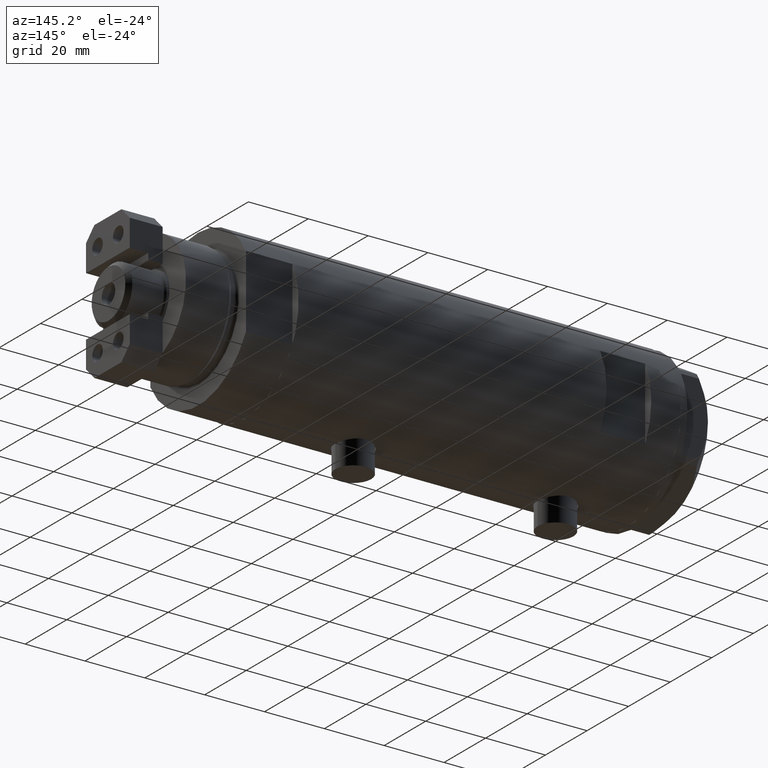
[diagram: clean part render]
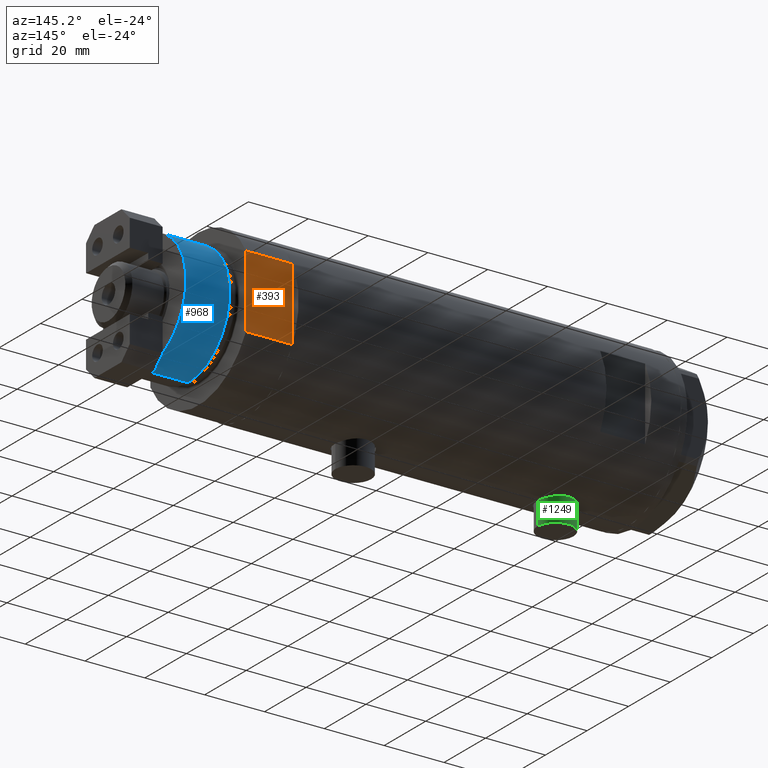
[diagram: same view with three faces highlighted in distinct colors, each labeled with its STEP entity id]
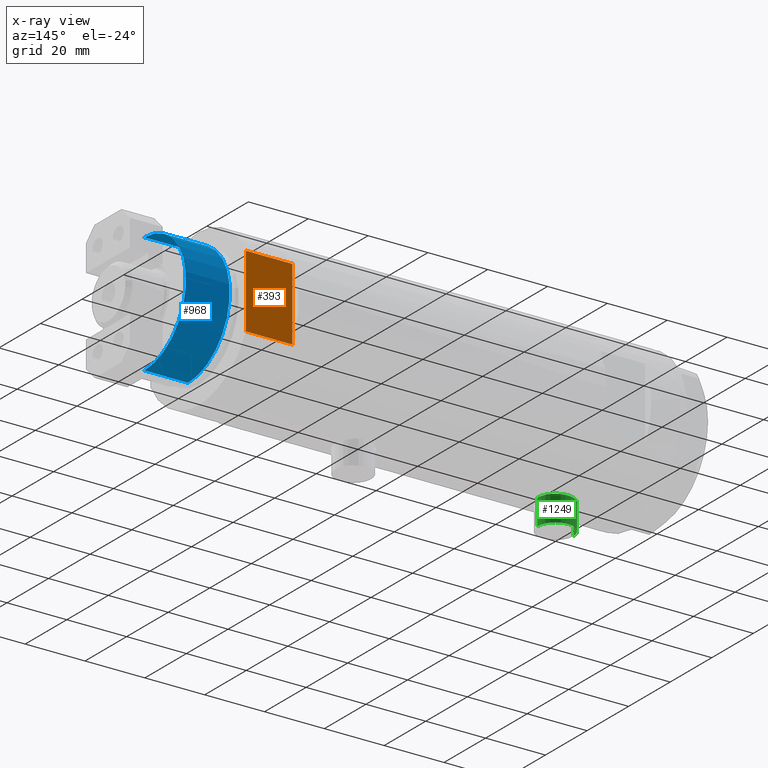
[diagram: x-ray of the same camera — body ghosted, the three highlighted faces saturated]
A machine part, auxiliary view with three faces highlighted in distinct colors.
The next image is the same camera in x-ray (body ghosted, the three faces saturated) — at least one of them is partly hidden behind the body in this view.
Their STEP definitions:

[orange] entity #393 — the highlighted planar face has unit normal (0, -1, -0).
#7 = CARTESIAN_POINT ( 'NONE',  ( -12.12435565298215145, 23.00000000000000355, 15.50000000000000000 ) ) ;
#44 = ORIENTED_EDGE ( 'NONE', *, *, #3057, .F. ) ;
#56 = CARTESIAN_POINT ( 'NONE',  ( -12.12435565298215145, 23.00000000000000355, 0.000000000000000000 ) ) ;
#237 = CARTESIAN_POINT ( 'NONE',  ( -12.12435565298215145, 23.00000000000000355, 0.000000000000000000 ) ) ;
#393 = ADVANCED_FACE ( 'NONE', ( #4900 ), #1020, .F. ) ;
#525 = CARTESIAN_POINT ( 'NONE',  ( 12.12435565298214080, 23.00000000000000355, 0.000000000000000000 ) ) ;
#891 = DIRECTION ( 'NONE',  ( 1.000000000000000000, 0.000000000000000000, 0.000000000000000000 ) ) ;
#1020 = PLANE ( 'NONE',  #1776 ) ;
#1053 = DIRECTION ( 'NONE',  ( 0.000000000000000000, -0.000000000000000000, -1.000000000000000000 ) ) ;
#1065 = VERTEX_POINT ( 'NONE', #525 ) ;
#1090 = LINE ( 'NONE', #2289, #5526 ) ;
#1113 = EDGE_CURVE ( 'NONE', #5584, #4503, #4328, .T. ) ;
#1275 = ORIENTED_EDGE ( 'NONE', *, *, #1113, .T. ) ;
#1442 = CARTESIAN_POINT ( 'NONE',  ( 12.12435565298214790, 23.00000000000000355, 15.50000000000000000 ) ) ;
#1656 = ORIENTED_EDGE ( 'NONE', *, *, #1748, .T. ) ;
#1748 = EDGE_CURVE ( 'NONE', #2187, #5584, #3330, .T. ) ;
#1776 = AXIS2_PLACEMENT_3D ( 'NONE', #5328, #4057, #1053 ) ;
#1781 = LINE ( 'NONE', #56, #4668 ) ;
#2007 = ORIENTED_EDGE ( 'NONE', *, *, #3160, .F. ) ;
#2163 = EDGE_LOOP ( 'NONE', ( #1275, #2007, #44, #1656 ) ) ;
#2187 = VERTEX_POINT ( 'NONE', #4598 ) ;
#2234 = DIRECTION ( 'NONE',  ( 1.000000000000000000, 0.000000000000000000, 0.000000000000000000 ) ) ;
#2289 = CARTESIAN_POINT ( 'NONE',  ( 12.12435565298215323, 23.00000000000000355, 0.000000000000000000 ) ) ;
#3057 = EDGE_CURVE ( 'NONE', #2187, #1065, #1781, .T. ) ;
#3160 = EDGE_CURVE ( 'NONE', #1065, #4503, #1090, .T. ) ;
#3330 = LINE ( 'NONE', #237, #3393 ) ;
#3393 = VECTOR ( 'NONE', #5057, 1000.000000000000000 ) ;
#3580 = CARTESIAN_POINT ( 'NONE',  ( -12.12435565298214613, 23.00000000000000355, 15.50000000000000000 ) ) ;
#3753 = VECTOR ( 'NONE', #891, 1000.000000000000000 ) ;
#4057 = DIRECTION ( 'NONE',  ( 0.000000000000000000, -1.000000000000000000, 0.000000000000000000 ) ) ;
#4328 = LINE ( 'NONE', #7, #3753 ) ;
#4503 = VERTEX_POINT ( 'NONE', #1442 ) ;
#4520 = DIRECTION ( 'NONE',  ( -0.000000000000000000, -0.000000000000000000, 1.000000000000000000 ) ) ;
#4598 = CARTESIAN_POINT ( 'NONE',  ( -12.12435565298215145, 23.00000000000000355, 0.000000000000000000 ) ) ;
#4668 = VECTOR ( 'NONE', #2234, 1000.000000000000000 ) ;
#4900 = FACE_OUTER_BOUND ( 'NONE', #2163, .T. ) ;
#5057 = DIRECTION ( 'NONE',  ( -0.000000000000000000, -0.000000000000000000, 1.000000000000000000 ) ) ;
#5328 = CARTESIAN_POINT ( 'NONE',  ( -12.12435565298215145, 23.00000000000000355, 0.000000000000000000 ) ) ;
#5526 = VECTOR ( 'NONE', #4520, 1000.000000000000000 ) ;
#5584 = VERTEX_POINT ( 'NONE', #3580 ) ;

[blue] entity #968 — the highlighted cylindrical surface (partial cylindrical patch) has radius 20 mm, axis along (-1, -0, 0).
#409 = CARTESIAN_POINT ( 'NONE',  ( 19.99999999999999645, 2.449293598294706119E-15, 18.87384048104053846 ) ) ;
#459 = VERTEX_POINT ( 'NONE', #4455 ) ;
#565 = VERTEX_POINT ( 'NONE', #1196 ) ;
#680 = CIRCLE ( 'NONE', #1191, 19.99999999999999645 ) ;
#939 = CARTESIAN_POINT ( 'NONE',  ( 0.000000000000000000, 0.000000000000000000, 33.50000000000000000 ) ) ;
#968 = ADVANCED_FACE ( 'NONE', ( #2160 ), #4302, .T. ) ;
#1191 = AXIS2_PLACEMENT_3D ( 'NONE', #939, #3870, #1807 ) ;
#1196 = CARTESIAN_POINT ( 'NONE',  ( 19.99999999999999645, 2.449293598294706119E-15, 33.50000000000000000 ) ) ;
#1351 = CARTESIAN_POINT ( 'NONE',  ( -19.99999999999999645, 0.000000000000000000, 33.50000000000000000 ) ) ;
#1521 = CARTESIAN_POINT ( 'NONE',  ( 19.99999999999999645, 2.449293598294706119E-15, 33.50000000000000000 ) ) ;
#1807 = DIRECTION ( 'NONE',  ( 1.000000000000000000, 0.000000000000000000, 0.000000000000000000 ) ) ;
#1899 = EDGE_LOOP ( 'NONE', ( #3116, #2560, #2049, #5556 ) ) ;
#2031 = LINE ( 'NONE', #1521, #2415 ) ;
#2049 = ORIENTED_EDGE ( 'NONE', *, *, #4681, .T. ) ;
#2101 = EDGE_CURVE ( 'NONE', #565, #2997, #2031, .T. ) ;
#2160 = FACE_OUTER_BOUND ( 'NONE', #1899, .T. ) ;
#2366 = LINE ( 'NONE', #1351, #4247 ) ;
#2387 = DIRECTION ( 'NONE',  ( -1.000000000000000000, 0.000000000000000000, 0.000000000000000000 ) ) ;
#2415 = VECTOR ( 'NONE', #3779, 1000.000000000000000 ) ;
#2490 = DIRECTION ( 'NONE',  ( -0.000000000000000000, -0.000000000000000000, 1.000000000000000000 ) ) ;
#2560 = ORIENTED_EDGE ( 'NONE', *, *, #2101, .T. ) ;
#2997 = VERTEX_POINT ( 'NONE', #409 ) ;
#3069 = EDGE_CURVE ( 'NONE', #565, #459, #680, .T. ) ;
#3081 = DIRECTION ( 'NONE',  ( -0.000000000000000000, -0.000000000000000000, -1.000000000000000000 ) ) ;
#3116 = ORIENTED_EDGE ( 'NONE', *, *, #3069, .F. ) ;
#3420 = DIRECTION ( 'NONE',  ( -0.000000000000000000, -0.000000000000000000, -1.000000000000000000 ) ) ;
#3492 = AXIS2_PLACEMENT_3D ( 'NONE', #5142, #3420, #2387 ) ;
#3779 = DIRECTION ( 'NONE',  ( -0.000000000000000000, -0.000000000000000000, -1.000000000000000000 ) ) ;
#3789 = CARTESIAN_POINT ( 'NONE',  ( 0.000000000000000000, 0.000000000000000000, 18.87384048104053846 ) ) ;
#3870 = DIRECTION ( 'NONE',  ( 0.000000000000000000, 0.000000000000000000, 1.000000000000000000 ) ) ;
#3965 = CIRCLE ( 'NONE', #5586, 19.99999999999999645 ) ;
#4247 = VECTOR ( 'NONE', #3081, 1000.000000000000000 ) ;
#4302 = CYLINDRICAL_SURFACE ( 'NONE', #3492, 19.99999999999999645 ) ;
#4455 = CARTESIAN_POINT ( 'NONE',  ( -19.99999999999999645, 0.000000000000000000, 33.50000000000000000 ) ) ;
#4586 = CARTESIAN_POINT ( 'NONE',  ( -19.99999999999999645, 0.000000000000000000, 18.87384048104053846 ) ) ;
#4681 = EDGE_CURVE ( 'NONE', #2997, #5231, #3965, .T. ) ;
#4908 = EDGE_CURVE ( 'NONE', #459, #5231, #2366, .T. ) ;
#5059 = DIRECTION ( 'NONE',  ( 1.000000000000000000, 0.000000000000000000, 0.000000000000000000 ) ) ;
#5142 = CARTESIAN_POINT ( 'NONE',  ( 0.000000000000000000, 0.000000000000000000, 33.50000000000000000 ) ) ;
#5231 = VERTEX_POINT ( 'NONE', #4586 ) ;
#5556 = ORIENTED_EDGE ( 'NONE', *, *, #4908, .F. ) ;
#5586 = AXIS2_PLACEMENT_3D ( 'NONE', #3789, #2490, #5059 ) ;

[green] entity #1249 — the highlighted cylindrical surface (edge-blend (fillet) strip) has radius 6 mm, axis along (0, 0, 1).
#66 = AXIS2_PLACEMENT_3D ( 'NONE', #5589, #3332, #2104 ) ;
#75 = VECTOR ( 'NONE', #2397, 1000.000000000000000 ) ;
#98 = DIRECTION ( 'NONE',  ( -1.000000000000000000, 0.000000000000000000, 0.000000000000000000 ) ) ;
#114 = CARTESIAN_POINT ( 'NONE',  ( -33.39999999999999858, 0.000000000000000000, 33.95000000000000995 ) ) ;
#147 = DIRECTION ( 'NONE',  ( 1.000000000000000000, -0.000000000000000000, -0.000000000000000000 ) ) ;
#492 = AXIS2_PLACEMENT_3D ( 'NONE', #3169, #147, #658 ) ;
#611 = CIRCLE ( 'NONE', #4956, 5.999999999999998224 ) ;
#650 = EDGE_CURVE ( 'NONE', #3173, #5169, #3916, .T. ) ;
#658 = DIRECTION ( 'NONE',  ( 0.000000000000000000, 0.000000000000000000, -1.000000000000000000 ) ) ;
#1249 = ADVANCED_FACE ( 'NONE', ( #4125 ), #1491, .T. ) ;
#1283 = CARTESIAN_POINT ( 'NONE',  ( -33.39999999999999858, 7.347880794884107903E-16, 45.95000000000000284 ) ) ;
#1491 = CYLINDRICAL_SURFACE ( 'NONE', #492, 5.999999999999998224 ) ;
#1819 = DIRECTION ( 'NONE',  ( 0.000000000000000000, 0.000000000000000000, 1.000000000000000000 ) ) ;
#2104 = DIRECTION ( 'NONE',  ( 0.000000000000000000, 0.000000000000000000, 1.000000000000000000 ) ) ;
#2296 = CARTESIAN_POINT ( 'NONE',  ( -24.80000000000000426, 0.000000000000000000, 39.95000000000000284 ) ) ;
#2332 = VERTEX_POINT ( 'NONE', #1283 ) ;
#2397 = DIRECTION ( 'NONE',  ( 1.000000000000000000, -0.000000000000000000, -0.000000000000000000 ) ) ;
#3169 = CARTESIAN_POINT ( 'NONE',  ( -33.39999999999999858, 0.000000000000000000, 39.95000000000000284 ) ) ;
#3173 = VERTEX_POINT ( 'NONE', #114 ) ;
#3250 = ORIENTED_EDGE ( 'NONE', *, *, #650, .F. ) ;
#3322 = LINE ( 'NONE', #3727, #75 ) ;
#3332 = DIRECTION ( 'NONE',  ( -1.000000000000000000, 0.000000000000000000, 0.000000000000000000 ) ) ;
#3360 = EDGE_CURVE ( 'NONE', #2332, #3671, #3322, .T. ) ;
#3436 = DIRECTION ( 'NONE',  ( 1.000000000000000000, -0.000000000000000000, -0.000000000000000000 ) ) ;
#3461 = ORIENTED_EDGE ( 'NONE', *, *, #3360, .T. ) ;
#3514 = CIRCLE ( 'NONE', #66, 5.999999999999998224 ) ;
#3671 = VERTEX_POINT ( 'NONE', #4111 ) ;
#3727 = CARTESIAN_POINT ( 'NONE',  ( -33.39999999999999858, 7.347880794884111847E-16, 45.95000000000000284 ) ) ;
#3754 = EDGE_LOOP ( 'NONE', ( #3872, #3461, #5490, #3250 ) ) ;
#3831 = CARTESIAN_POINT ( 'NONE',  ( -24.80000000000000426, 0.000000000000000000, 33.95000000000000995 ) ) ;
#3872 = ORIENTED_EDGE ( 'NONE', *, *, #4778, .F. ) ;
#3916 = LINE ( 'NONE', #3943, #4734 ) ;
#3943 = CARTESIAN_POINT ( 'NONE',  ( -33.39999999999999858, 0.000000000000000000, 33.95000000000000995 ) ) ;
#4111 = CARTESIAN_POINT ( 'NONE',  ( -24.80000000000000426, 7.347880794884107903E-16, 45.95000000000000284 ) ) ;
#4125 = FACE_OUTER_BOUND ( 'NONE', #3754, .T. ) ;
#4462 = EDGE_CURVE ( 'NONE', #3671, #5169, #611, .T. ) ;
#4734 = VECTOR ( 'NONE', #3436, 1000.000000000000000 ) ;
#4778 = EDGE_CURVE ( 'NONE', #2332, #3173, #3514, .T. ) ;
#4956 = AXIS2_PLACEMENT_3D ( 'NONE', #2296, #98, #1819 ) ;
#5169 = VERTEX_POINT ( 'NONE', #3831 ) ;
#5490 = ORIENTED_EDGE ( 'NONE', *, *, #4462, .T. ) ;
#5589 = CARTESIAN_POINT ( 'NONE',  ( -33.39999999999999858, 0.000000000000000000, 39.95000000000000284 ) ) ;